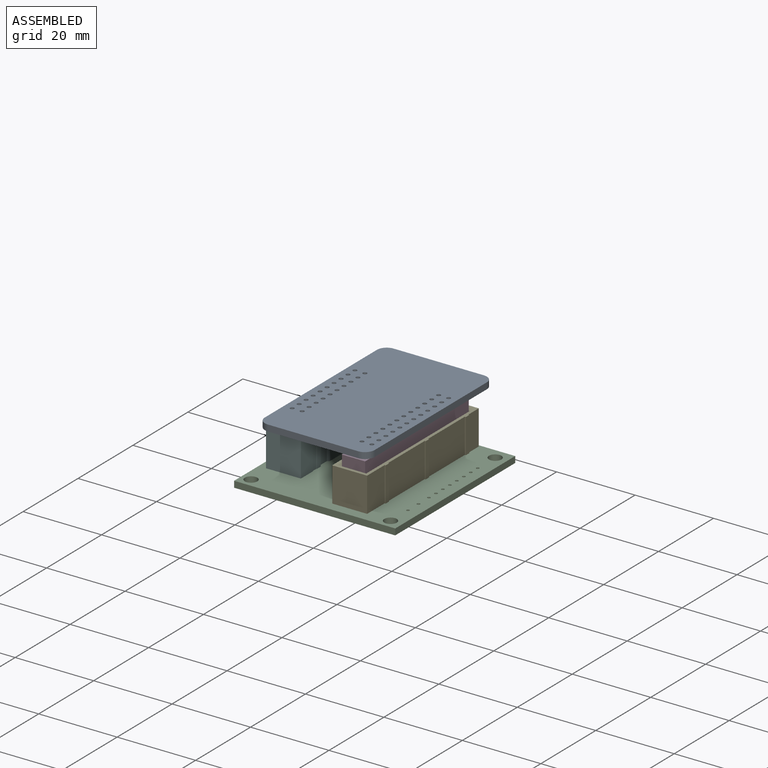
[diagram: assembled view]
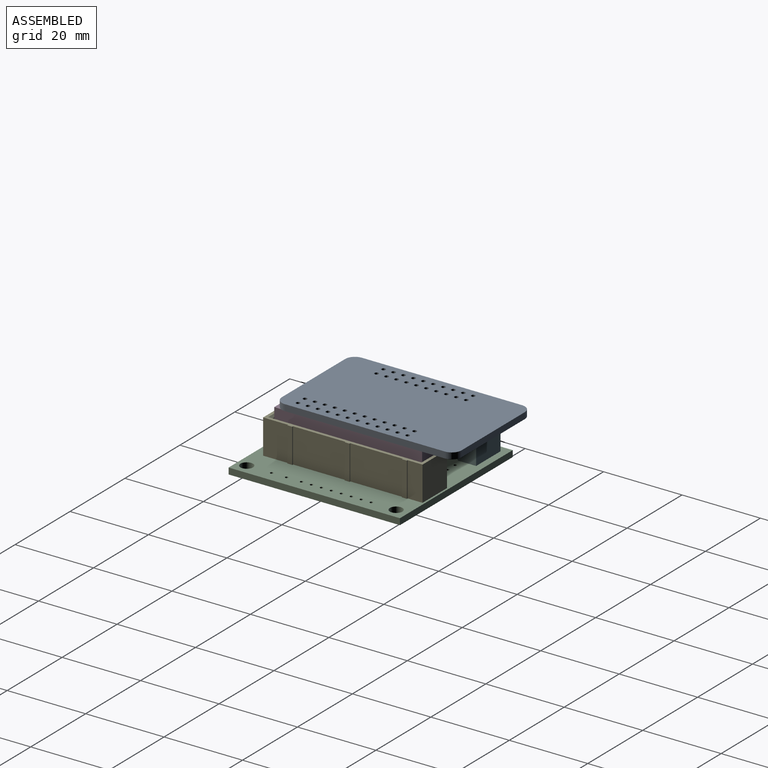
[diagram: assembled view, second angle]
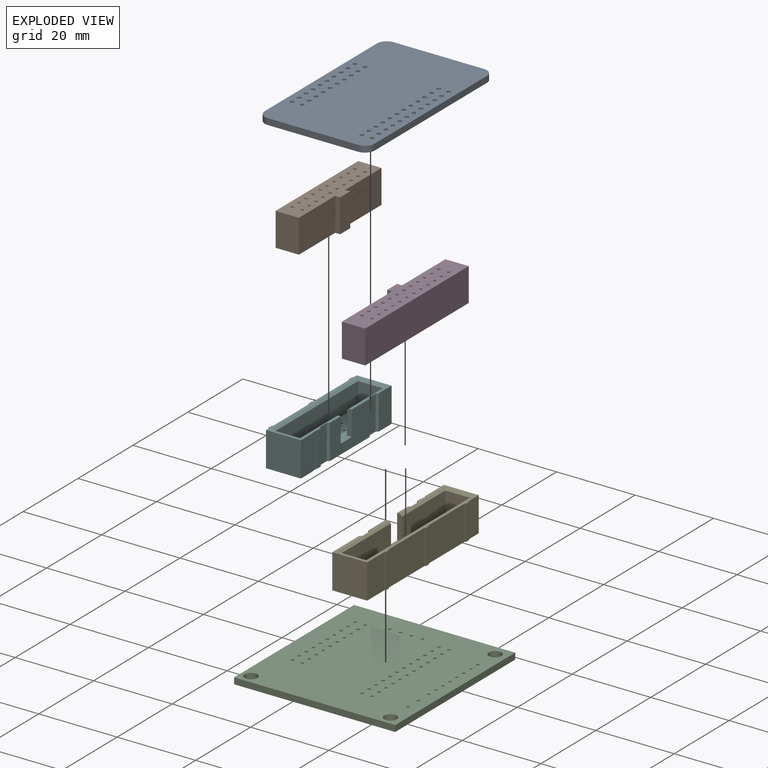
[diagram: exploded view]
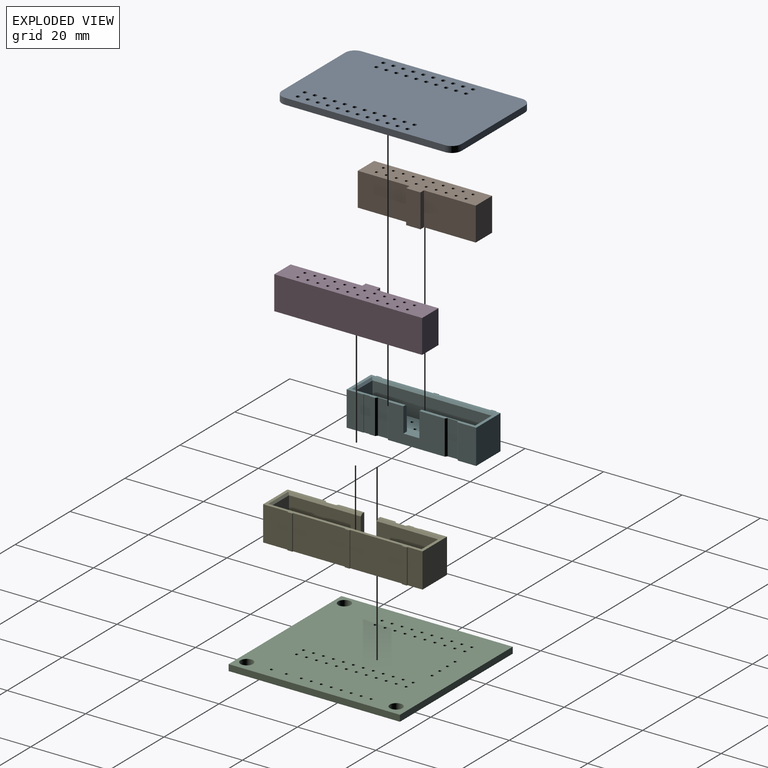
[diagram: exploded view, second angle]
ASSEMBLY  parts=6 mates=5
PART A: 54 faces, bbox 28x45.8x1.6 mm
  f0: cylinder r=2.5mm len=2.5mm, axis (0,0,-1), area 6.3mm2, adj f1,f7,f8,f9
  f1: plane 23.02x1.6mm, normal (0,-1,0), area 36.8mm2, adj f0,f2,f8,f9
  f2: cylinder r=2.5mm len=2.5mm, axis (0,0,-1), area 6.3mm2, adj f1,f3,f8,f9
  f3: plane 40.81x1.6mm, normal (1,0,0), area 65.3mm2, adj f2,f4,f8,f9
  f4: cylinder r=2.5mm len=2.5mm, axis (0,0,-1), area 6.3mm2, adj f3,f5,f8,f9
  f5: plane 23.02x1.6mm, normal (0,1,0), area 36.8mm2, adj f4,f6,f8,f9
  f6: cylinder r=2.5mm len=2.5mm, axis (0,0,-1), area 6.3mm2, adj f5,f7,f8,f9
  f7: plane 40.81x1.6mm, normal (-1,0,0), area 65.3mm2, adj f0,f6,f8,f9
  f8: plane 45.81x28.02mm, normal (0,0,1), area 1242.4mm2, adj f0,f1,f2,f3,f4,f5,f6,f7
  f9: plane 45.81x28.02mm, normal (0,0,-1), area 1242.4mm2, adj f0,f1,f2,f3,f4,f5,f6,f7
  f10: cylinder r=0.51mm len=1.6mm, axis (0,0,-1), area 5.1mm2, adj f8,f9
  f11: cylinder r=0.51mm len=1.6mm, axis (0,0,-1), area 5.1mm2, adj f8,f9
  f12: cylinder r=0.51mm len=1.6mm, axis (0,0,-1), area 5.1mm2, adj f8,f9
  f13: cylinder r=0.51mm len=1.6mm, axis (0,0,-1), area 5.1mm2, adj f8,f9
  f14: cylinder r=0.51mm len=1.6mm, axis (0,0,-1), area 5.1mm2, adj f8,f9
  f15: cylinder r=0.51mm len=1.6mm, axis (0,0,-1), area 5.1mm2, adj f8,f9
  f16: cylinder r=0.51mm len=1.6mm, axis (0,0,-1), area 5.1mm2, adj f8,f9
  f17: cylinder r=0.51mm len=1.6mm, axis (0,0,-1), area 5.1mm2, adj f8,f9
  f18: cylinder r=0.51mm len=1.6mm, axis (0,0,-1), area 5.1mm2, adj f8,f9
  f19: cylinder r=0.51mm len=1.6mm, axis (0,0,-1), area 5.1mm2, adj f8,f9
  f20: cylinder r=0.51mm len=1.6mm, axis (0,0,-1), area 5.1mm2, adj f8,f9
  f21: cylinder r=0.51mm len=1.6mm, axis (0,0,-1), area 5.1mm2, adj f8,f9
  f22: cylinder r=0.51mm len=1.6mm, axis (0,0,-1), area 5.1mm2, adj f8,f9
  f23: cylinder r=0.51mm len=1.6mm, axis (0,0,-1), area 5.1mm2, adj f8,f9
  f24: cylinder r=0.51mm len=1.6mm, axis (0,0,-1), area 5.1mm2, adj f8,f9
  f25: cylinder r=0.51mm len=1.6mm, axis (0,0,-1), area 5.1mm2, adj f8,f9
  f26: cylinder r=0.51mm len=1.6mm, axis (0,0,-1), area 5.1mm2, adj f8,f9
  f27: cylinder r=0.51mm len=1.6mm, axis (0,0,-1), area 5.1mm2, adj f8,f9
  f28: cylinder r=0.51mm len=1.6mm, axis (0,0,-1), area 5.1mm2, adj f8,f9
  f29: cylinder r=0.51mm len=1.6mm, axis (0,0,-1), area 5.1mm2, adj f8,f9
  f30: cylinder r=0.51mm len=1.6mm, axis (0,0,-1), area 5.1mm2, adj f8,f9
  f31: cylinder r=0.51mm len=1.6mm, axis (0,0,-1), area 5.1mm2, adj f8,f9
  f32: cylinder r=0.51mm len=1.6mm, axis (0,0,-1), area 5.1mm2, adj f8,f9
  f33: cylinder r=0.51mm len=1.6mm, axis (0,0,-1), area 5.1mm2, adj f8,f9
  f34: cylinder r=0.51mm len=1.6mm, axis (0,0,-1), area 5.1mm2, adj f8,f9
  f35: cylinder r=0.51mm len=1.6mm, axis (0,0,-1), area 5.1mm2, adj f8,f9
  f36: cylinder r=0.51mm len=1.6mm, axis (0,0,-1), area 5.1mm2, adj f8,f9
  f37: cylinder r=0.51mm len=1.6mm, axis (0,0,-1), area 5.1mm2, adj f8,f9
  f38: cylinder r=0.51mm len=1.6mm, axis (0,0,-1), area 5.1mm2, adj f8,f9
  f39: cylinder r=0.51mm len=1.6mm, axis (0,0,-1), area 5.1mm2, adj f8,f9
  f40: cylinder r=0.51mm len=1.6mm, axis (0,0,-1), area 5.1mm2, adj f8,f9
  f41: cylinder r=0.51mm len=1.6mm, axis (0,0,-1), area 5.1mm2, adj f8,f9
  f42: cylinder r=0.51mm len=1.6mm, axis (0,0,-1), area 5.1mm2, adj f8,f9
  f43: cylinder r=0.51mm len=1.6mm, axis (0,0,-1), area 5.1mm2, adj f8,f9
  f44: cylinder r=0.51mm len=1.6mm, axis (0,0,-1), area 5.1mm2, adj f8,f9
  f45: cylinder r=0.51mm len=1.6mm, axis (0,0,-1), area 5.1mm2, adj f8,f9
  f46: cylinder r=0.51mm len=1.6mm, axis (0,0,-1), area 5.1mm2, adj f8,f9
  f47: cylinder r=0.51mm len=1.6mm, axis (0,0,-1), area 5.1mm2, adj f8,f9
  f48: cylinder r=0.51mm len=1.6mm, axis (0,0,-1), area 5.1mm2, adj f8,f9
  f49: cylinder r=0.51mm len=1.6mm, axis (0,0,-1), area 5.1mm2, adj f8,f9
  f50: cylinder r=0.51mm len=1.6mm, axis (0,0,-1), area 5.1mm2, adj f8,f9
  f51: cylinder r=0.51mm len=1.6mm, axis (0,0,-1), area 5.1mm2, adj f8,f9
  f52: cylinder r=0.51mm len=1.6mm, axis (0,0,-1), area 5.1mm2, adj f8,f9
  f53: cylinder r=0.51mm len=1.6mm, axis (0,0,-1), area 5.1mm2, adj f8,f9
PART B: 30 faces, bbox 7.2x30.1x8.5 mm
  f0: plane 30.08x7.22mm, normal (0,0,-1), area 174.8mm2, adj f1,f2,f3,f4,f5,f6,f7,f8
  f1: cylinder r=0.38mm len=8.5mm, axis (0,0,-1), area 20mm2, adj f0,f21
  f2: cylinder r=0.38mm len=8.5mm, axis (0,0,-1), area 20mm2, adj f0,f21
  f3: cylinder r=0.38mm len=8.5mm, axis (0,0,-1), area 20mm2, adj f0,f21
  f4: cylinder r=0.38mm len=8.5mm, axis (0,0,-1), area 20mm2, adj f0,f21
  f5: cylinder r=0.38mm len=8.5mm, axis (0,0,-1), area 20mm2, adj f0,f21
  f6: cylinder r=0.38mm len=8.5mm, axis (0,0,-1), area 20mm2, adj f0,f21
  f7: cylinder r=0.38mm len=8.5mm, axis (0,0,-1), area 20mm2, adj f0,f21
  f8: cylinder r=0.38mm len=8.5mm, axis (0,0,-1), area 20mm2, adj f0,f21
  f9: cylinder r=0.38mm len=8.5mm, axis (0,0,-1), area 20mm2, adj f0,f21
  f10: cylinder r=0.38mm len=8.5mm, axis (0,0,-1), area 20mm2, adj f0,f21
  f11: cylinder r=0.38mm len=8.5mm, axis (0,0,-1), area 20mm2, adj f0,f21
  f12: cylinder r=0.38mm len=8.5mm, axis (0,0,-1), area 20mm2, adj f0,f21
  f13: cylinder r=0.38mm len=8.5mm, axis (0,0,-1), area 20mm2, adj f0,f21
  f14: cylinder r=0.38mm len=8.5mm, axis (0,0,-1), area 20mm2, adj f0,f21
  f15: cylinder r=0.38mm len=8.5mm, axis (0,0,-1), area 20mm2, adj f0,f21
  f16: cylinder r=0.38mm len=8.5mm, axis (0,0,-1), area 20mm2, adj f0,f21
  f17: cylinder r=0.38mm len=8.5mm, axis (0,0,-1), area 20mm2, adj f0,f21
  f18: cylinder r=0.38mm len=8.5mm, axis (0,0,-1), area 20mm2, adj f0,f21
  f19: cylinder r=0.38mm len=8.5mm, axis (0,0,-1), area 20mm2, adj f0,f21
  f20: cylinder r=0.38mm len=8.5mm, axis (0,0,-1), area 20mm2, adj f0,f21
  f21: plane 30.08x7.22mm, normal (0,0,1), area 174.8mm2, adj f1,f2,f3,f4,f5,f6,f7,f8
  f22: plane 8.5x5.95mm, normal (0,1,0), area 50.6mm2, adj f0,f21,f23,f25
  f23: plane 30.08x8.5mm, normal (-1,0,0), area 255.7mm2, adj f0,f21,f22,f28
  f24: plane 8.5x1.27mm, normal (0,1,0), area 10.8mm2, adj f0,f21,f25,f27
  f25: plane 13.21x8.5mm, normal (1,0,0), area 112.3mm2, adj f0,f21,f22,f24
  f26: plane 8.5x1.27mm, normal (0,-1,0), area 10.8mm2, adj f0,f21,f27,f29
  f27: plane 8.5x3.66mm, normal (1,0,0), area 31.1mm2, adj f0,f21,f24,f26
  f28: plane 8.5x5.95mm, normal (0,-1,0), area 50.6mm2, adj f0,f21,f23,f29
  f29: plane 13.21x8.5mm, normal (1,0,0), area 112.3mm2, adj f0,f21,f26,f28
PART C: 67 faces, bbox 41.1x43.7x1.6 mm
  f0: plane 41.07x1.6mm, normal (0,-1,0), area 65.7mm2, adj f1,f6,f7,f8
  f1: plane 43.68x1.6mm, normal (1,0,0), area 69.9mm2, adj f0,f2,f7,f8
  f2: plane 41.07x1.6mm, normal (0,1,0), area 65.7mm2, adj f1,f6,f7,f8
  f3: cylinder r=1.6mm len=3.2mm, axis (0,0,1), area 16.1mm2, adj f7,f8
  f4: cylinder r=1.6mm len=3.2mm, axis (0,0,1), area 16.1mm2, adj f7,f8
  f5: cylinder r=1.6mm len=3.2mm, axis (0,0,1), area 16.1mm2, adj f7,f8
  f6: plane 43.68x1.6mm, normal (-1,0,0), area 69.9mm2, adj f0,f2,f7,f8
  f7: plane 43.68x41.07mm, normal (0,0,-1), area 1744.2mm2, adj f0,f1,f2,f3,f4,f5,f6,f9
  f8: plane 43.68x41.07mm, normal (0,0,1), area 1744.2mm2, adj f0,f1,f2,f3,f4,f5,f6,f9
  f9: cylinder r=0.38mm len=1.6mm, axis (0,0,1), area 3.8mm2, adj f7,f8
  f10: cylinder r=0.38mm len=1.6mm, axis (0,0,1), area 3.8mm2, adj f7,f8
  f11: cylinder r=0.38mm len=1.6mm, axis (0,0,1), area 3.8mm2, adj f7,f8
  f12: cylinder r=0.38mm len=1.6mm, axis (0,0,1), area 3.8mm2, adj f7,f8
  f13: cylinder r=0.38mm len=1.6mm, axis (0,0,1), area 3.8mm2, adj f7,f8
  f14: cylinder r=0.38mm len=1.6mm, axis (0,0,1), area 3.8mm2, adj f7,f8
  f15: cylinder r=0.38mm len=1.6mm, axis (0,0,1), area 3.8mm2, adj f7,f8
  f16: cylinder r=0.38mm len=1.6mm, axis (0,0,1), area 3.8mm2, adj f7,f8
  f17: cylinder r=0.38mm len=1.6mm, axis (0,0,1), area 3.8mm2, adj f7,f8
  f18: cylinder r=0.38mm len=1.6mm, axis (0,0,1), area 3.8mm2, adj f7,f8
  f19: cylinder r=0.38mm len=1.6mm, axis (0,0,1), area 3.8mm2, adj f7,f8
  f20: cylinder r=0.38mm len=1.6mm, axis (0,0,1), area 3.8mm2, adj f7,f8
  f21: cylinder r=0.38mm len=1.6mm, axis (0,0,1), area 3.8mm2, adj f7,f8
  f22: cylinder r=0.38mm len=1.6mm, axis (0,0,1), area 3.8mm2, adj f7,f8
  f23: cylinder r=0.38mm len=1.6mm, axis (0,0,1), area 3.8mm2, adj f7,f8
  f24: cylinder r=0.38mm len=1.6mm, axis (0,0,1), area 3.8mm2, adj f7,f8
  f25: cylinder r=0.38mm len=1.6mm, axis (0,0,1), area 3.8mm2, adj f7,f8
  f26: cylinder r=0.38mm len=1.6mm, axis (0,0,1), area 3.8mm2, adj f7,f8
  f27: cylinder r=0.38mm len=1.6mm, axis (0,0,1), area 3.8mm2, adj f7,f8
  f28: cylinder r=0.38mm len=1.6mm, axis (0,0,1), area 3.8mm2, adj f7,f8
  f29: cylinder r=0.38mm len=1.6mm, axis (0,0,1), area 3.8mm2, adj f7,f8
  f30: cylinder r=0.38mm len=1.6mm, axis (0,0,1), area 3.8mm2, adj f7,f8
  f31: cylinder r=0.38mm len=1.6mm, axis (0,0,1), area 3.8mm2, adj f7,f8
  f32: cylinder r=0.38mm len=1.6mm, axis (0,0,1), area 3.8mm2, adj f7,f8
  f33: cylinder r=0.38mm len=1.6mm, axis (0,0,1), area 3.8mm2, adj f7,f8
  f34: cylinder r=0.38mm len=1.6mm, axis (0,0,1), area 3.8mm2, adj f7,f8
  f35: cylinder r=0.38mm len=1.6mm, axis (0,0,1), area 3.8mm2, adj f7,f8
  f36: cylinder r=0.38mm len=1.6mm, axis (0,0,1), area 3.8mm2, adj f7,f8
  f37: cylinder r=0.38mm len=1.6mm, axis (0,0,1), area 3.8mm2, adj f7,f8
  f38: cylinder r=0.38mm len=1.6mm, axis (0,0,1), area 3.8mm2, adj f7,f8
  f39: cylinder r=0.38mm len=1.6mm, axis (0,0,1), area 3.8mm2, adj f7,f8
  f40: cylinder r=0.38mm len=1.6mm, axis (0,0,1), area 3.8mm2, adj f7,f8
  f41: cylinder r=0.38mm len=1.6mm, axis (0,0,1), area 3.8mm2, adj f7,f8
  f42: cylinder r=0.38mm len=1.6mm, axis (0,0,1), area 3.8mm2, adj f7,f8
  f43: cylinder r=0.38mm len=1.6mm, axis (0,0,1), area 3.8mm2, adj f7,f8
  f44: cylinder r=0.38mm len=1.6mm, axis (0,0,1), area 3.8mm2, adj f7,f8
  f45: cylinder r=0.38mm len=1.6mm, axis (0,0,1), area 3.8mm2, adj f7,f8
  f46: cylinder r=0.38mm len=1.6mm, axis (0,0,1), area 3.8mm2, adj f7,f8
  f47: cylinder r=0.38mm len=1.6mm, axis (0,0,1), area 3.8mm2, adj f7,f8
  f48: cylinder r=0.38mm len=1.6mm, axis (0,0,1), area 3.8mm2, adj f7,f8
  f49: cylinder r=0.38mm len=1.6mm, axis (0,0,1), area 3.8mm2, adj f7,f8
  f50: cylinder r=0.38mm len=1.6mm, axis (0,0,1), area 3.8mm2, adj f7,f8
  f51: cylinder r=0.38mm len=1.6mm, axis (0,0,1), area 3.8mm2, adj f7,f8
  f52: cylinder r=0.38mm len=1.6mm, axis (0,0,1), area 3.8mm2, adj f7,f8
  f53: cylinder r=0.38mm len=1.6mm, axis (0,0,1), area 3.8mm2, adj f7,f8
  f54: cylinder r=0.38mm len=1.6mm, axis (0,0,1), area 3.8mm2, adj f7,f8
  f55: cylinder r=0.38mm len=1.6mm, axis (0,0,1), area 3.8mm2, adj f7,f8
  f56: cylinder r=0.38mm len=1.6mm, axis (0,0,1), area 3.8mm2, adj f7,f8
  f57: cylinder r=0.38mm len=1.6mm, axis (0,0,1), area 3.8mm2, adj f7,f8
  f58: cylinder r=0.38mm len=1.6mm, axis (0,0,1), area 3.8mm2, adj f7,f8
  f59: cylinder r=0.38mm len=1.6mm, axis (0,0,1), area 3.8mm2, adj f7,f8
  f60: cylinder r=0.38mm len=1.6mm, axis (0,0,1), area 3.8mm2, adj f7,f8
  f61: cylinder r=0.38mm len=1.6mm, axis (0,0,1), area 3.8mm2, adj f7,f8
  f62: cylinder r=0.38mm len=1.6mm, axis (0,0,1), area 3.8mm2, adj f7,f8
  f63: cylinder r=0.38mm len=1.6mm, axis (0,0,1), area 3.8mm2, adj f7,f8
  f64: cylinder r=0.38mm len=1.6mm, axis (0,0,1), area 3.8mm2, adj f7,f8
  f65: cylinder r=0.38mm len=1.6mm, axis (0,0,1), area 3.8mm2, adj f7,f8
  f66: cylinder r=0.38mm len=1.6mm, axis (0,0,1), area 3.8mm2, adj f7,f8
PART D: 34 faces, bbox 7.2x37.7x8.5 mm
  f0: cylinder r=0.38mm len=8.5mm, axis (0,0,-1), area 20mm2, adj f24,f25
  f1: cylinder r=0.38mm len=8.5mm, axis (0,0,-1), area 20mm2, adj f24,f25
  f2: cylinder r=0.38mm len=8.5mm, axis (0,0,-1), area 20mm2, adj f24,f25
  f3: cylinder r=0.38mm len=8.5mm, axis (0,0,-1), area 20mm2, adj f24,f25
  f4: cylinder r=0.38mm len=8.5mm, axis (0,0,-1), area 20mm2, adj f24,f25
  f5: cylinder r=0.38mm len=8.5mm, axis (0,0,-1), area 20mm2, adj f24,f25
  f6: cylinder r=0.38mm len=8.5mm, axis (0,0,-1), area 20mm2, adj f24,f25
  f7: cylinder r=0.38mm len=8.5mm, axis (0,0,-1), area 20mm2, adj f24,f25
  f8: cylinder r=0.38mm len=8.5mm, axis (0,0,-1), area 20mm2, adj f24,f25
  f9: cylinder r=0.38mm len=8.5mm, axis (0,0,-1), area 20mm2, adj f24,f25
  f10: cylinder r=0.38mm len=8.5mm, axis (0,0,-1), area 20mm2, adj f24,f25
  f11: cylinder r=0.38mm len=8.5mm, axis (0,0,-1), area 20mm2, adj f24,f25
  f12: cylinder r=0.38mm len=8.5mm, axis (0,0,-1), area 20mm2, adj f24,f25
  f13: cylinder r=0.38mm len=8.5mm, axis (0,0,-1), area 20mm2, adj f24,f25
  f14: cylinder r=0.38mm len=8.5mm, axis (0,0,-1), area 20mm2, adj f24,f25
  f15: cylinder r=0.38mm len=8.5mm, axis (0,0,-1), area 20mm2, adj f24,f25
  f16: cylinder r=0.38mm len=8.5mm, axis (0,0,-1), area 20mm2, adj f24,f25
  f17: cylinder r=0.38mm len=8.5mm, axis (0,0,-1), area 20mm2, adj f24,f25
  f18: cylinder r=0.38mm len=8.5mm, axis (0,0,-1), area 20mm2, adj f24,f25
  f19: cylinder r=0.38mm len=8.5mm, axis (0,0,-1), area 20mm2, adj f24,f25
  f20: cylinder r=0.38mm len=8.5mm, axis (0,0,-1), area 20mm2, adj f24,f25
  f21: cylinder r=0.38mm len=8.5mm, axis (0,0,-1), area 20mm2, adj f24,f25
  f22: cylinder r=0.38mm len=8.5mm, axis (0,0,-1), area 20mm2, adj f24,f25
  f23: cylinder r=0.38mm len=8.5mm, axis (0,0,-1), area 20mm2, adj f24,f25
  f24: plane 37.7x7.22mm, normal (0,0,1), area 218.4mm2, adj f0,f1,f2,f3,f4,f5,f6,f7
  f25: plane 37.7x7.22mm, normal (0,0,-1), area 218.4mm2, adj f0,f1,f2,f3,f4,f5,f6,f7
  f26: plane 8.5x1.27mm, normal (0,1,0), area 10.8mm2, adj f24,f25,f29,f30
  f27: plane 8.5x5.95mm, normal (0,1,0), area 50.6mm2, adj f24,f25,f28,f29
  f28: plane 37.7x8.5mm, normal (-1,0,0), area 320.4mm2, adj f24,f25,f27,f33
  f29: plane 18.29x8.5mm, normal (1,0,0), area 155.4mm2, adj f24,f25,f26,f27
  f30: plane 8.5x3.66mm, normal (1,0,0), area 31.1mm2, adj f24,f25,f26,f31
  f31: plane 8.5x1.27mm, normal (0,-1,0), area 10.8mm2, adj f24,f25,f30,f32
  f32: plane 15.75x8.5mm, normal (1,0,0), area 133.9mm2, adj f24,f25,f31,f33
  f33: plane 8.5x5.95mm, normal (0,-1,0), area 50.6mm2, adj f24,f25,f28,f32
PART E: 67 faces, bbox 9.1x40.6x8.8 mm
  f0: plane 40.64x9.14mm, normal (0,0,1), area 68.6mm2, adj f25,f26,f27,f28,f29,f30,f31,f32
  f1: cylinder r=0.38mm len=2.5mm, axis (0,0,-1), area 5.9mm2, adj f53,f61
  f2: cylinder r=0.38mm len=2.5mm, axis (0,0,-1), area 5.9mm2, adj f53,f61
  f3: cylinder r=0.38mm len=2.5mm, axis (0,0,-1), area 5.9mm2, adj f53,f61
  f4: cylinder r=0.38mm len=2.5mm, axis (0,0,-1), area 5.9mm2, adj f53,f61
  f5: cylinder r=0.38mm len=2.5mm, axis (0,0,-1), area 5.9mm2, adj f53,f61
  f6: cylinder r=0.38mm len=2.5mm, axis (0,0,-1), area 5.9mm2, adj f53,f61
  f7: cylinder r=0.38mm len=2.5mm, axis (0,0,-1), area 5.9mm2, adj f53,f61
  f8: cylinder r=0.38mm len=2.5mm, axis (0,0,-1), area 5.9mm2, adj f53,f61
  f9: cylinder r=0.38mm len=2.5mm, axis (0,0,-1), area 5.9mm2, adj f53,f61
  f10: cylinder r=0.38mm len=2.5mm, axis (0,0,-1), area 5.9mm2, adj f53,f61
  f11: cylinder r=0.38mm len=2.5mm, axis (0,0,-1), area 5.9mm2, adj f53,f61
  f12: cylinder r=0.38mm len=2.5mm, axis (0,0,-1), area 5.9mm2, adj f53,f61
  f13: cylinder r=0.38mm len=2.5mm, axis (0,0,-1), area 5.9mm2, adj f53,f61
  f14: cylinder r=0.38mm len=2.5mm, axis (0,0,-1), area 5.9mm2, adj f53,f61
  f15: cylinder r=0.38mm len=2.5mm, axis (0,0,-1), area 5.9mm2, adj f53,f61
  f16: cylinder r=0.38mm len=2.5mm, axis (0,0,-1), area 5.9mm2, adj f53,f61
  f17: cylinder r=0.38mm len=2.5mm, axis (0,0,-1), area 5.9mm2, adj f53,f61
  f18: cylinder r=0.38mm len=2.5mm, axis (0,0,-1), area 5.9mm2, adj f53,f61
  f19: cylinder r=0.38mm len=2.5mm, axis (0,0,-1), area 5.9mm2, adj f53,f61
  f20: cylinder r=0.38mm len=2.5mm, axis (0,0,-1), area 5.9mm2, adj f53,f61
  f21: cylinder r=0.38mm len=2.5mm, axis (0,0,-1), area 5.9mm2, adj f53,f61
  f22: cylinder r=0.38mm len=2.5mm, axis (0,0,-1), area 5.9mm2, adj f53,f61
  f23: cylinder r=0.38mm len=2.5mm, axis (0,0,-1), area 5.9mm2, adj f53,f61
  f24: cylinder r=0.38mm len=2.5mm, axis (0,0,-1), area 5.9mm2, adj f53,f61
  f25: plane 8.8x0.13mm, normal (0,-1,0), area 1.1mm2, adj f0,f26,f52,f53
  f26: plane 8.8x1.4mm, normal (1,0,0), area 12.3mm2, adj f0,f25,f27,f53
  f27: plane 8.8x0.51mm, normal (0.6,0.8,0), area 5.6mm2, adj f0,f26,f28,f53
  f28: plane 8.8x2.54mm, normal (1,0,0), area 22.4mm2, adj f0,f27,f29,f53
  f29: plane 8.8x0.51mm, normal (0.6,-0.8,0), area 5.6mm2, adj f0,f28,f30,f53
  f30: plane 14.48x8.8mm, normal (1,0,0), area 101.8mm2, adj f0,f29,f31,f53,f54,f60,f61
  f31: plane 8.8x0.51mm, normal (0.6,0.8,0), area 5.6mm2, adj f0,f30,f32,f53
  f32: plane 8.8x2.54mm, normal (1,0,0), area 22.4mm2, adj f0,f31,f33,f53
  f33: plane 8.8x0.51mm, normal (0.6,-0.8,0), area 5.6mm2, adj f0,f32,f34,f53
  f34: plane 9.78x8.8mm, normal (1,0,0), area 86.1mm2, adj f0,f33,f35,f53
  f35: plane 8.89x8.8mm, normal (0,1,0), area 78.2mm2, adj f0,f34,f36,f53
  f36: plane 8.8x6.35mm, normal (-1,0,0), area 55.9mm2, adj f0,f35,f37,f53
  f37: plane 8.8x0.25mm, normal (0,1,0), area 2.2mm2, adj f0,f36,f38,f53
  f38: plane 8.8x1.27mm, normal (-1,0,0), area 11.2mm2, adj f0,f37,f39,f53
  f39: plane 8.8x0.25mm, normal (0,-1,0), area 2.2mm2, adj f0,f38,f40,f53
  f40: plane 13.34x8.8mm, normal (-1,0,0), area 117.3mm2, adj f0,f39,f41,f53
  f41: plane 8.8x0.25mm, normal (0,1,0), area 2.2mm2, adj f0,f40,f42,f53
  f42: plane 8.8x1.27mm, normal (-1,0,0), area 11.2mm2, adj f0,f41,f43,f53
  f43: plane 8.8x0.25mm, normal (0,-1,0), area 2.2mm2, adj f0,f42,f44,f53
  f44: plane 13.34x8.8mm, normal (-1,0,0), area 117.3mm2, adj f0,f43,f45,f53
  f45: plane 8.8x0.25mm, normal (0,1,0), area 2.2mm2, adj f0,f44,f46,f53
  f46: plane 8.8x1.27mm, normal (-1,0,0), area 11.2mm2, adj f0,f45,f47,f53
  f47: plane 8.8x0.25mm, normal (0,-1,0), area 2.2mm2, adj f0,f46,f48,f53
  f48: plane 8.8x3.81mm, normal (-1,0,0), area 33.5mm2, adj f0,f47,f49,f53
  f49: plane 8.89x8.8mm, normal (0,-1,0), area 78.2mm2, adj f0,f48,f50,f53
  f50: plane 8.8x6.86mm, normal (1,0,0), area 60.4mm2, adj f0,f49,f51,f53
  f51: plane 8.8x0.13mm, normal (0,1,0), area 1.1mm2, adj f0,f50,f52,f53
  f52: plane 8.8x1.52mm, normal (1,0,0), area 13.4mm2, adj f0,f25,f51,f53
  f53: plane 40.64x9.14mm, normal (0,0,-1), area 348.5mm2, adj f1,f2,f3,f4,f5,f6,f7,f8
  f54: plane 6.3x1.27mm, normal (0,-1,0), area 7.9mm2, adj f0,f30,f55,f61,f62
  f55: plane 18.29x5.8mm, normal (-1,0,0), area 106.1mm2, adj f54,f56,f61,f62
  f56: plane 6.35x5.8mm, normal (0,-1,0), area 36.8mm2, adj f55,f57,f61,f63
  f57: plane 38.1x5.8mm, normal (1,0,0), area 221mm2, adj f56,f58,f61,f64
  f58: plane 6.35x5.8mm, normal (0,1,0), area 36.8mm2, adj f57,f59,f61,f65
  f59: plane 15.75x5.8mm, normal (-1,0,0), area 91.3mm2, adj f58,f60,f61,f66
  f60: plane 6.3x1.27mm, normal (0,1,0), area 7.9mm2, adj f0,f30,f59,f61,f66
  f61: plane 38.1x7.62mm, normal (0,0,1), area 236.5mm2, adj f1,f2,f3,f4,f5,f6,f7,f8
  f62: plane 18.79x0.5mm, normal (-0.71,0,0.71), area 13.1mm2, adj f0,f54,f55,f63
  f63: plane 7.35x0.5mm, normal (0,-0.71,0.71), area 4.8mm2, adj f0,f56,f62,f64
  f64: plane 39.1x0.5mm, normal (0.71,0,0.71), area 27.3mm2, adj f0,f57,f63,f65
  f65: plane 7.35x0.5mm, normal (0,0.71,0.71), area 4.8mm2, adj f0,f58,f64,f66
  f66: plane 16.25x0.5mm, normal (-0.71,0,0.71), area 11.3mm2, adj f0,f59,f60,f65
PART F: 63 faces, bbox 9.1x33x8.8 mm
  f0: cylinder r=0.38mm len=2.5mm, axis (0,0,-1), area 5.9mm2, adj f49,f57
  f1: cylinder r=0.38mm len=2.5mm, axis (0,0,-1), area 5.9mm2, adj f49,f57
  f2: cylinder r=0.38mm len=2.5mm, axis (0,0,-1), area 5.9mm2, adj f49,f57
  f3: cylinder r=0.38mm len=2.5mm, axis (0,0,-1), area 5.9mm2, adj f49,f57
  f4: cylinder r=0.38mm len=2.5mm, axis (0,0,-1), area 5.9mm2, adj f49,f57
  f5: cylinder r=0.38mm len=2.5mm, axis (0,0,-1), area 5.9mm2, adj f49,f57
  f6: cylinder r=0.38mm len=2.5mm, axis (0,0,-1), area 5.9mm2, adj f49,f57
  f7: cylinder r=0.38mm len=2.5mm, axis (0,0,-1), area 5.9mm2, adj f49,f57
  f8: cylinder r=0.38mm len=2.5mm, axis (0,0,-1), area 5.9mm2, adj f49,f57
  f9: cylinder r=0.38mm len=2.5mm, axis (0,0,-1), area 5.9mm2, adj f49,f57
  f10: cylinder r=0.38mm len=2.5mm, axis (0,0,-1), area 5.9mm2, adj f49,f57
  f11: cylinder r=0.38mm len=2.5mm, axis (0,0,-1), area 5.9mm2, adj f49,f57
  f12: cylinder r=0.38mm len=2.5mm, axis (0,0,-1), area 5.9mm2, adj f49,f57
  f13: cylinder r=0.38mm len=2.5mm, axis (0,0,-1), area 5.9mm2, adj f49,f57
  f14: cylinder r=0.38mm len=2.5mm, axis (0,0,-1), area 5.9mm2, adj f49,f57
  f15: cylinder r=0.38mm len=2.5mm, axis (0,0,-1), area 5.9mm2, adj f49,f57
  f16: cylinder r=0.38mm len=2.5mm, axis (0,0,-1), area 5.9mm2, adj f49,f57
  f17: cylinder r=0.38mm len=2.5mm, axis (0,0,-1), area 5.9mm2, adj f49,f57
  f18: cylinder r=0.38mm len=2.5mm, axis (0,0,-1), area 5.9mm2, adj f49,f57
  f19: cylinder r=0.38mm len=2.5mm, axis (0,0,-1), area 5.9mm2, adj f49,f57
  f20: plane 8.8x2.54mm, normal (1,0,0), area 22.4mm2, adj f21,f47,f48,f49
  f21: plane 8.8x0.51mm, normal (0.6,-0.8,0), area 5.6mm2, adj f20,f22,f48,f49
  f22: plane 8.8x4.7mm, normal (1,0,0), area 41.4mm2, adj f21,f23,f48,f49
  f23: plane 8.89x8.8mm, normal (0,1,0), area 78.2mm2, adj f22,f24,f48,f49
  f24: plane 8.8x1.27mm, normal (-1,0,0), area 11.2mm2, adj f23,f25,f48,f49
  f25: plane 8.8x0.25mm, normal (0,1,0), area 2.2mm2, adj f24,f26,f48,f49
  f26: plane 8.8x1.27mm, normal (-1,0,0), area 11.2mm2, adj f25,f27,f48,f49
  f27: plane 8.8x0.25mm, normal (0,-1,0), area 2.2mm2, adj f26,f28,f48,f49
  f28: plane 13.34x8.8mm, normal (-1,0,0), area 117.3mm2, adj f27,f29,f48,f49
  f29: plane 8.8x0.25mm, normal (0,1,0), area 2.2mm2, adj f28,f30,f48,f49
  f30: plane 8.8x1.27mm, normal (-1,0,0), area 11.2mm2, adj f29,f31,f48,f49
  f31: plane 8.8x0.25mm, normal (0,-1,0), area 2.2mm2, adj f30,f32,f48,f49
  f32: plane 13.34x8.8mm, normal (-1,0,0), area 117.3mm2, adj f31,f33,f48,f49
  f33: plane 8.8x0.25mm, normal (0,1,0), area 2.2mm2, adj f32,f34,f48,f49
  f34: plane 8.8x1.27mm, normal (-1,0,0), area 11.2mm2, adj f33,f35,f48,f49
  f35: plane 8.8x0.25mm, normal (0,-1,0), area 2.2mm2, adj f34,f36,f48,f49
  f36: plane 8.8x1.27mm, normal (-1,0,0), area 11.2mm2, adj f35,f37,f48,f49
  f37: plane 8.89x8.8mm, normal (0,-1,0), area 78.2mm2, adj f36,f38,f48,f49
  f38: plane 8.8x4.32mm, normal (1,0,0), area 38mm2, adj f37,f39,f48,f49
  f39: plane 8.8x0.13mm, normal (0,1,0), area 1.1mm2, adj f38,f40,f48,f49
  f40: plane 8.8x1.52mm, normal (1,0,0), area 13.4mm2, adj f39,f41,f48,f49
  f41: plane 8.8x0.13mm, normal (0,-1,0), area 1.1mm2, adj f40,f42,f48,f49
  f42: plane 8.8x1.4mm, normal (1,0,0), area 12.3mm2, adj f41,f43,f48,f49
  f43: plane 8.8x0.51mm, normal (0.6,0.8,0), area 5.6mm2, adj f42,f44,f48,f49
  f44: plane 8.8x2.54mm, normal (1,0,0), area 22.4mm2, adj f43,f45,f48,f49
  f45: plane 8.8x0.51mm, normal (0.6,-0.8,0), area 5.6mm2, adj f44,f46,f48,f49
  f46: plane 14.48x8.8mm, normal (1,0,0), area 101.8mm2, adj f45,f47,f48,f49,f50,f51,f57
  f47: plane 8.8x0.51mm, normal (0.6,0.8,0), area 5.6mm2, adj f20,f46,f48,f49
  f48: plane 33.02x9.14mm, normal (0,0,1), area 56.8mm2, adj f20,f21,f22,f23,f24,f25,f26,f27
  f49: plane 33.02x9.14mm, normal (0,0,-1), area 282.5mm2, adj f0,f1,f2,f3,f4,f5,f6,f7
  f50: plane 6.3x1.27mm, normal (0,1,0), area 7.9mm2, adj f46,f48,f56,f57,f58
  f51: plane 6.3x1.27mm, normal (0,-1,0), area 7.9mm2, adj f46,f48,f52,f57,f60
  f52: plane 13.21x5.8mm, normal (-1,0,0), area 76.6mm2, adj f51,f53,f57,f60
  f53: plane 6.35x5.8mm, normal (0,-1,0), area 36.8mm2, adj f52,f54,f57,f62
  f54: plane 30.48x5.8mm, normal (1,0,0), area 176.8mm2, adj f53,f55,f57,f61
  f55: plane 6.35x5.8mm, normal (0,1,0), area 36.8mm2, adj f54,f56,f57,f59
  f56: plane 13.21x5.8mm, normal (-1,0,0), area 76.6mm2, adj f50,f55,f57,f58
  f57: plane 30.48x7.62mm, normal (0,0,1), area 189.9mm2, adj f0,f1,f2,f3,f4,f5,f6,f7
  f58: plane 13.71x0.5mm, normal (-0.71,0,0.71), area 9.5mm2, adj f48,f50,f56,f59
  f59: plane 7.35x0.5mm, normal (0,0.71,0.71), area 4.8mm2, adj f48,f55,f58,f61
  f60: plane 13.71x0.5mm, normal (-0.71,0,0.71), area 9.5mm2, adj f48,f51,f52,f62
  f61: plane 31.48x0.5mm, normal (0.71,0,0.71), area 21.9mm2, adj f48,f54,f59,f62
  f62: plane 7.35x0.5mm, normal (0,-0.71,0.71), area 4.8mm2, adj f48,f53,f60,f61
PLACE A t=(6.4,15.57,0.01)mm
PLACE B t=(6.4,15.57,0.01)mm
PLACE C t=(6.6,15.37,0.01)mm fixed
PLACE D rot(axis=(0,0,-1),180deg) t=(21.16,17.76,0.01)mm
PLACE E rot(axis=(0,0,1),180deg) t=(21.36,17.56,0.01)mm
PLACE F t=(6.6,15.37,0.01)mm
MATE fastened C.f66 <-> E.f2  axis (0,0,1) through (12.71,30.44,0.01)mm
MATE fastened C.f9 <-> F.f0  axis (0,0,1) through (-8.63,30.44,0.01)mm
MATE fastened A.f19 <-> D.f1  axis (0,0,-1) through (15.05,30.64,11.01)mm
MATE fastened A.f10 <-> B.f20  axis (0,0,-1) through (-8.83,30.64,11.01)mm
MATE slider F.f57 <-> B.f0  axis (0,0,1) through (-10.53,34.25,2.51)mm
